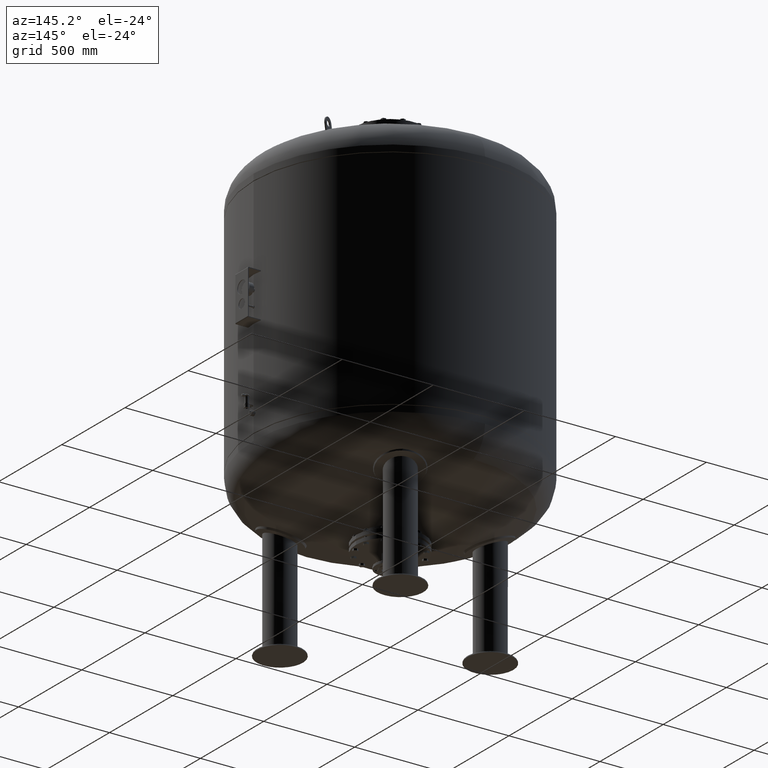
[diagram: clean part render]
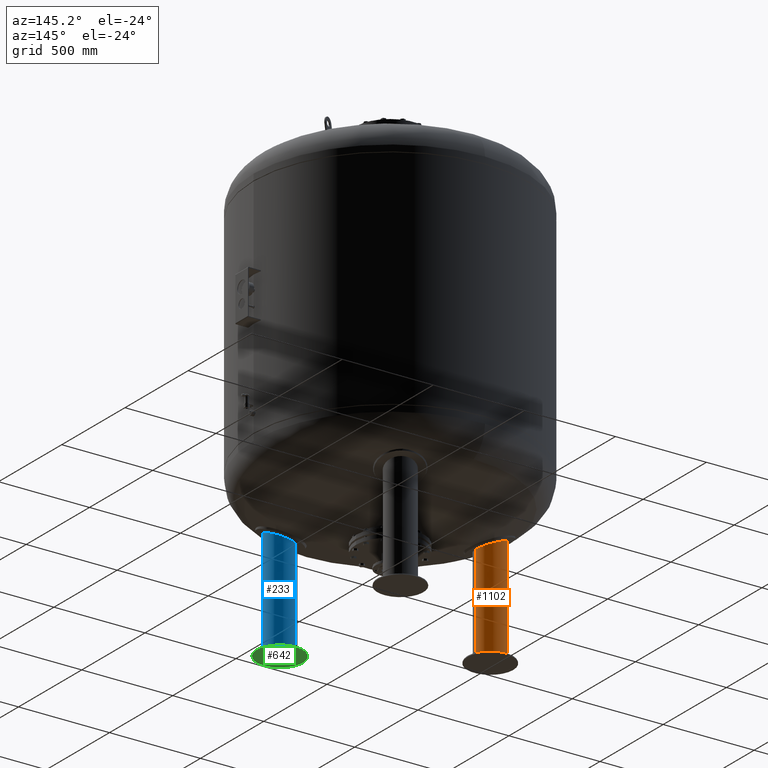
[diagram: same view with three faces highlighted in distinct colors, each labeled with its STEP entity id]
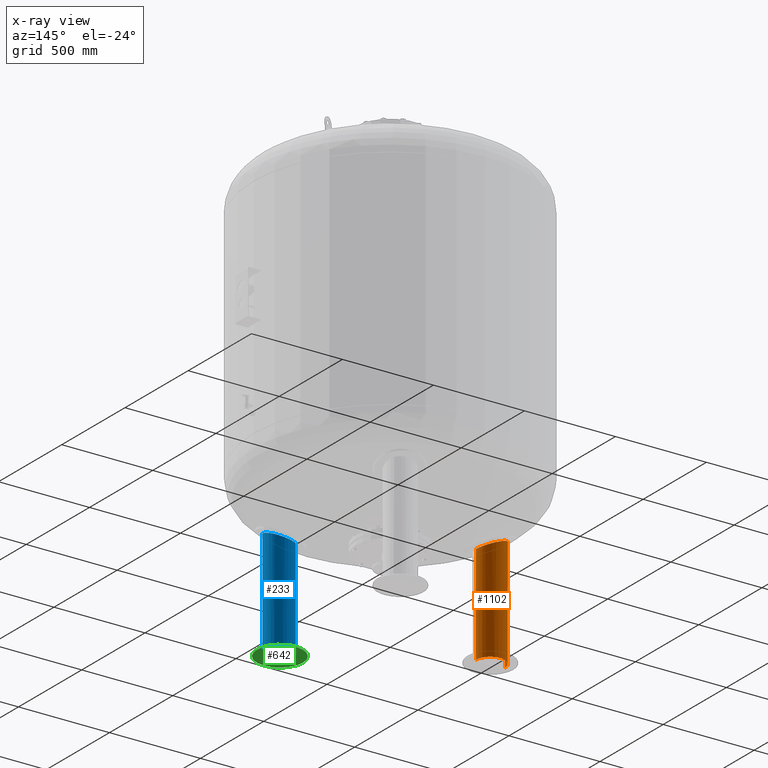
[diagram: x-ray of the same camera — body ghosted, the three highlighted faces saturated]
A machine part, auxiliary view with three faces highlighted in distinct colors.
The next image is the same camera in x-ray (body ghosted, the three faces saturated) — at least one of them is partly hidden behind the body in this view.
Their STEP definitions:

[orange] entity #1102 — the highlighted cylindrical surface (edge-blend (fillet) strip) has radius 79.5 mm, axis along (-0, -0, -1).
#692=CARTESIAN_POINT('',(-629.500000000000000,1.187255E-014,11.631170282581067));
#693=VERTEX_POINT('',#692);
#694=CARTESIAN_POINT('',(-629.500000000000680,1.236234E-013,619.974328976416250));
#695=VERTEX_POINT('',#694);
#696=CARTESIAN_POINT('',(-629.500000000000000,1.187255E-014,11.631170282581067));
#697=DIRECTION('',(0.0,0.0,1.0));
#698=VECTOR('',#697,608.343158693835220);
#699=LINE('',#696,#698);
#700=EDGE_CURVE('',#693,#695,#699,.T.);
#702=CARTESIAN_POINT('',(-470.500000000000000,-1.733495E-014,11.631170282581067));
#703=VERTEX_POINT('',#702);
#711=CARTESIAN_POINT('',(-470.500000000000000,7.681439E-014,557.801446445446690));
#712=VERTEX_POINT('',#711);
#713=CARTESIAN_POINT('',(-470.500000000000000,-1.733495E-014,11.631170282581067));
#714=DIRECTION('',(0.0,0.0,1.0));
#715=VECTOR('',#714,546.170276162865660);
#716=LINE('',#713,#715);
#717=EDGE_CURVE('',#703,#712,#716,.T.);
#799=CARTESIAN_POINT('',(-549.259022444332120,79.496546794574755,588.259208461118310));
#800=VERTEX_POINT('',#799);
#801=CARTESIAN_POINT('',(-549.259022444332120,79.496546794574755,588.259208461118310));
#802=CARTESIAN_POINT('',(-540.401279760728700,79.413984862175425,584.797146556692160));
#803=CARTESIAN_POINT('',(-531.575460725973930,77.851266591540124,581.360502151041940));
#804=CARTESIAN_POINT('',(-513.058214382275310,71.208252571481324,574.174236989335670));
#805=CARTESIAN_POINT('',(-503.676852198831510,65.536339505062799,570.549958778381670));
#806=CARTESIAN_POINT('',(-488.232684979459290,51.074552176673606,564.600364334074580));
#807=CARTESIAN_POINT('',(-482.115720236831750,42.669749602980019,562.252334812652180));
#808=CARTESIAN_POINT('',(-473.643130615666110,24.231733499397386,559.003880738072780));
#809=CARTESIAN_POINT('',(-471.203296638851610,14.525158374878805,558.070588206412370));
#810=CARTESIAN_POINT('',(-470.543488982217640,3.038514087384455,557.818088260262240));
#811=CARTESIAN_POINT('',(-470.500000000000000,1.518216679410996,557.801446445446690));
#812=CARTESIAN_POINT('',(-470.500000000000000,7.681439E-014,557.801446445446690));
#813=B_SPLINE_CURVE_WITH_KNOTS('',3,(#801,#802,#803,#804,#805,#806,#807,#808,#809,#810,#811,#812),.UNSPECIFIED.,.F.,.U.,(4,2,2,2,2,4),(13.058196146459986,15.908544671985489,19.326182717890447,22.493256912797680,25.489178793934588,25.946274642103887),.UNSPECIFIED.);
#814=EDGE_CURVE('',#800,#712,#813,.T.);
#1065=CARTESIAN_POINT('',(-629.500000000000000,1.183404E-013,619.974328976416360));
#1066=CARTESIAN_POINT('',(-629.499999999999770,9.592202166925050,619.974328976416020));
#1067=CARTESIAN_POINT('',(-627.764875279292370,19.057045087347213,619.280247607236110));
#1068=CARTESIAN_POINT('',(-621.014758583427350,37.029118879032914,616.585819491894090));
#1069=CARTESIAN_POINT('',(-616.016537504471100,45.297994220543920,614.592514188904490));
#1070=CARTESIAN_POINT('',(-603.087412912687230,60.037998727795404,609.453155597640030));
#1071=CARTESIAN_POINT('',(-595.101102273712850,66.211195741385055,606.286372499794770));
#1072=CARTESIAN_POINT('',(-576.790586001446740,75.609934501561952,599.055880090259170));
#1073=CARTESIAN_POINT('',(-566.452340789569350,78.493118529778243,594.989155554557560));
#1074=CARTESIAN_POINT('',(-553.699965758499730,79.444984341154537,589.995750597807050));
#1075=CARTESIAN_POINT('',(-551.478488600296260,79.517234166208439,589.126690109795050));
#1076=CARTESIAN_POINT('',(-549.259022444332120,79.496546794574755,588.259208461118310));
#1077=B_SPLINE_CURVE_WITH_KNOTS('',3,(#1065,#1066,#1067,#1068,#1069,#1070,#1071,#1072,#1073,#1074,#1075,#1076),.UNSPECIFIED.,.F.,.U.,(4,2,2,2,2,4),(0.0,2.877660650077480,5.813761654146234,8.951189755024860,12.343990246483170,13.058196146459986),.UNSPECIFIED.);
#1078=EDGE_CURVE('',#695,#800,#1077,.T.);
#1084=CARTESIAN_POINT('',(-550.0,2.905276E-015,15.815585141290533));
#1085=DIRECTION('',(-2.249640E-032,-1.836970E-016,-1.0));
#1086=DIRECTION('',(-1.0,0.0,0.0));
#1087=AXIS2_PLACEMENT_3D('',#1084,#1085,#1086);
#1088=CYLINDRICAL_SURFACE('',#1087,79.500000000000000);
#1089=ORIENTED_EDGE('',*,*,#700,.T.);
#1090=ORIENTED_EDGE('',*,*,#1078,.T.);
#1091=ORIENTED_EDGE('',*,*,#814,.T.);
#1092=ORIENTED_EDGE('',*,*,#717,.F.);
#1093=CARTESIAN_POINT('',(-550.0,2.136611E-015,11.631170282581067));
#1094=DIRECTION('',(0.0,0.0,-1.0));
#1095=DIRECTION('',(-1.0,0.0,0.0));
#1096=AXIS2_PLACEMENT_3D('',#1093,#1094,#1095);
#1097=CIRCLE('',#1096,79.500000000000000);
#1098=EDGE_CURVE('',#693,#703,#1097,.T.);
#1099=ORIENTED_EDGE('',*,*,#1098,.F.);
#1100=EDGE_LOOP('',(#1089,#1090,#1091,#1092,#1099));
#1101=FACE_OUTER_BOUND('',#1100,.T.);
#1102=ADVANCED_FACE('',(#1101),#1088,.T.);

[blue] entity #233 — the highlighted cylindrical surface (edge-blend (fillet) strip) has radius 79.5 mm, axis along (0, 0, -1).
#167=CARTESIAN_POINT('',(274.999999999999890,-476.313972081441250,15.815585141290533));
#168=DIRECTION('',(1.590863E-016,9.184851E-017,-1.0));
#169=DIRECTION('',(0.500000000000000,-0.866025403784439,0.0));
#170=AXIS2_PLACEMENT_3D('',#167,#168,#169);
#171=CYLINDRICAL_SURFACE('',#170,79.500000000000000);
#172=CARTESIAN_POINT('',(314.749999999999890,-545.162991682304100,11.631170282581067));
#173=VERTEX_POINT('',#172);
#174=CARTESIAN_POINT('',(314.750000000000110,-545.162991682304780,619.974328976416250));
#175=VERTEX_POINT('',#174);
#176=CARTESIAN_POINT('',(314.749999999999890,-545.162991682304100,11.631170282581067));
#177=DIRECTION('',(0.0,0.0,1.0));
#178=VECTOR('',#177,608.343158693835220);
#179=LINE('',#176,#178);
#180=EDGE_CURVE('',#173,#175,#179,.T.);
#181=ORIENTED_EDGE('',*,*,#180,.F.);
#182=CARTESIAN_POINT('',(235.249999999999890,-407.464952480578400,11.631170282581067));
#183=VERTEX_POINT('',#182);
#184=CARTESIAN_POINT('',(274.999999999999890,-476.313972081441250,11.631170282581067));
#185=DIRECTION('',(0.0,0.0,-1.000000000000000));
#186=DIRECTION('',(0.500000000000000,-0.866025403784439,0.0));
#187=AXIS2_PLACEMENT_3D('',#184,#185,#186);
#188=CIRCLE('',#187,79.500000000000000);
#189=EDGE_CURVE('',#183,#173,#188,.T.);
#190=ORIENTED_EDGE('',*,*,#189,.F.);
#191=CARTESIAN_POINT('',(235.249999999999770,-407.464952480578460,557.801446445446690));
#192=VERTEX_POINT('',#191);
#193=CARTESIAN_POINT('',(235.249999999999890,-407.464952480578400,11.631170282581067));
#194=DIRECTION('',(0.0,0.0,1.0));
#195=VECTOR('',#194,546.170276162865660);
#196=LINE('',#193,#195);
#197=EDGE_CURVE('',#183,#192,#196,.T.);
#198=ORIENTED_EDGE('',*,*,#197,.T.);
#199=CARTESIAN_POINT('',(343.475540259405880,-435.923993297311480,588.259208461118310));
#200=VERTEX_POINT('',#199);
#201=CARTESIAN_POINT('',(235.249999999999770,-407.464952480578460,557.801446445446690));
#202=CARTESIAN_POINT('',(242.282700894920990,-403.404620725765600,557.801446445446690));
#203=CARTESIAN_POINT('',(249.885975801156460,-400.451610787080260,558.277369662588170));
#204=CARTESIAN_POINT('',(267.270620755335530,-396.597055088747990,560.328261777430270));
#205=CARTESIAN_POINT('',(276.954377197880090,-396.270319464510980,562.075596332598020));
#206=CARTESIAN_POINT('',(296.341456745020710,-399.072489778784760,566.734659420112730));
#207=CARTESIAN_POINT('',(305.818108910622530,-402.373919211337180,569.661195647944850));
#208=CARTESIAN_POINT('',(323.583126452498560,-412.496769615312990,576.486089468713540));
#209=CARTESIAN_POINT('',(331.582796994881960,-419.500370050858520,580.391859104990320));
#210=CARTESIAN_POINT('',(339.969799272506800,-430.379304327032170,585.699021239809100));
#211=CARTESIAN_POINT('',(341.810672620973320,-433.101443881988080,586.978453284904280));
#212=CARTESIAN_POINT('',(343.475540259405880,-435.923993297311480,588.259208461118310));
#213=B_SPLINE_CURVE_WITH_KNOTS('',3,(#201,#202,#203,#204,#205,#206,#207,#208,#209,#210,#211,#212),.UNSPECIFIED.,.F.,.U.,(4,2,2,2,2,4),(25.946274642103887,28.391196783303212,31.323094720106891,34.426409319311013,37.777807879739491,38.832927063683989),.UNSPECIFIED.);
#214=EDGE_CURVE('',#192,#200,#213,.T.);
#215=ORIENTED_EDGE('',*,*,#214,.T.);
#216=CARTESIAN_POINT('',(343.475540259405880,-435.923993297311480,588.259208461118310));
#217=CARTESIAN_POINT('',(347.425654749982580,-442.620858014037420,591.297966296069940));
#218=CARTESIAN_POINT('',(350.384943361649900,-449.882913637144330,594.344322088060950));
#219=CARTESIAN_POINT('',(354.807454012759190,-468.025368474697360,601.394273940897850));
#220=CARTESIAN_POINT('',(355.220505554612880,-479.095487505130900,605.264897102246320));
#221=CARTESIAN_POINT('',(351.546225351953470,-500.101187832981220,611.749699955350710));
#222=CARTESIAN_POINT('',(347.824400099864820,-509.890893953472410,614.383971692484580));
#223=CARTESIAN_POINT('',(338.831776724313730,-524.123023604612060,617.505471067215810));
#224=CARTESIAN_POINT('',(334.809706666959300,-529.077385518121330,618.415766111970470));
#225=CARTESIAN_POINT('',(325.557982821373170,-538.005689491232830,619.656658887407730));
#226=CARTESIAN_POINT('',(320.369830266758530,-541.918381164990710,619.974328976416020));
#227=CARTESIAN_POINT('',(314.749999999999660,-545.162991682303980,619.974328976416020));
#228=B_SPLINE_CURVE_WITH_KNOTS('',3,(#216,#217,#218,#219,#220,#221,#222,#223,#224,#225,#226,#227),.UNSPECIFIED.,.F.,.U.,(4,2,2,2,2,4),(38.832927063683989,41.336334230459492,44.806614551580793,48.013896662752792,49.941938919734973,51.888705230122902),.UNSPECIFIED.);
#229=EDGE_CURVE('',#200,#175,#228,.T.);
#230=ORIENTED_EDGE('',*,*,#229,.T.);
#231=EDGE_LOOP('',(#181,#190,#198,#215,#230));
#232=FACE_OUTER_BOUND('',#231,.T.);
#233=ADVANCED_FACE('',(#232),#171,.T.);

[green] entity #642 — the highlighted spherical surface has radius 570 mm.
#130=CARTESIAN_POINT('',(338.155635094881400,-585.702740850056100,14.171372612881115));
#131=VERTEX_POINT('',#130);
#140=CARTESIAN_POINT('',(211.844364905118400,-366.925203312826450,14.171372612881102));
#141=VERTEX_POINT('',#140);
#142=CARTESIAN_POINT('',(274.999999999999890,-476.313972081441250,14.171372612881115));
#143=DIRECTION('',(0.0,0.0,-1.0));
#144=DIRECTION('',(0.500000000000000,-0.866025403784439,0.0));
#145=AXIS2_PLACEMENT_3D('',#142,#143,#144);
#146=CIRCLE('',#145,126.311270189763010);
#147=EDGE_CURVE('',#141,#131,#146,.T.);
#623=CARTESIAN_POINT('',(274.999999999999890,-476.313972081441250,14.171372612881115));
#624=DIRECTION('',(0.0,0.0,-1.0));
#625=DIRECTION('',(0.500000000000000,-0.866025403784439,0.0));
#626=AXIS2_PLACEMENT_3D('',#623,#624,#625);
#627=CIRCLE('',#626,126.311270189763010);
#628=EDGE_CURVE('',#131,#141,#627,.T.);
#633=CARTESIAN_POINT('',(274.999999999999770,-476.313972081441310,570.0));
#634=DIRECTION('',(-0.866025403784439,-0.500000000000000,-1.836970E-016));
#635=DIRECTION('',(0.500000000000000,-0.866025403784439,0.0));
#636=AXIS2_PLACEMENT_3D('',#633,#634,#635);
#637=SPHERICAL_SURFACE('',#636,570.0);
#638=ORIENTED_EDGE('',*,*,#628,.T.);
#639=ORIENTED_EDGE('',*,*,#147,.T.);
#640=EDGE_LOOP('',(#638,#639));
#641=FACE_OUTER_BOUND('',#640,.T.);
#642=ADVANCED_FACE('',(#641),#637,.T.);